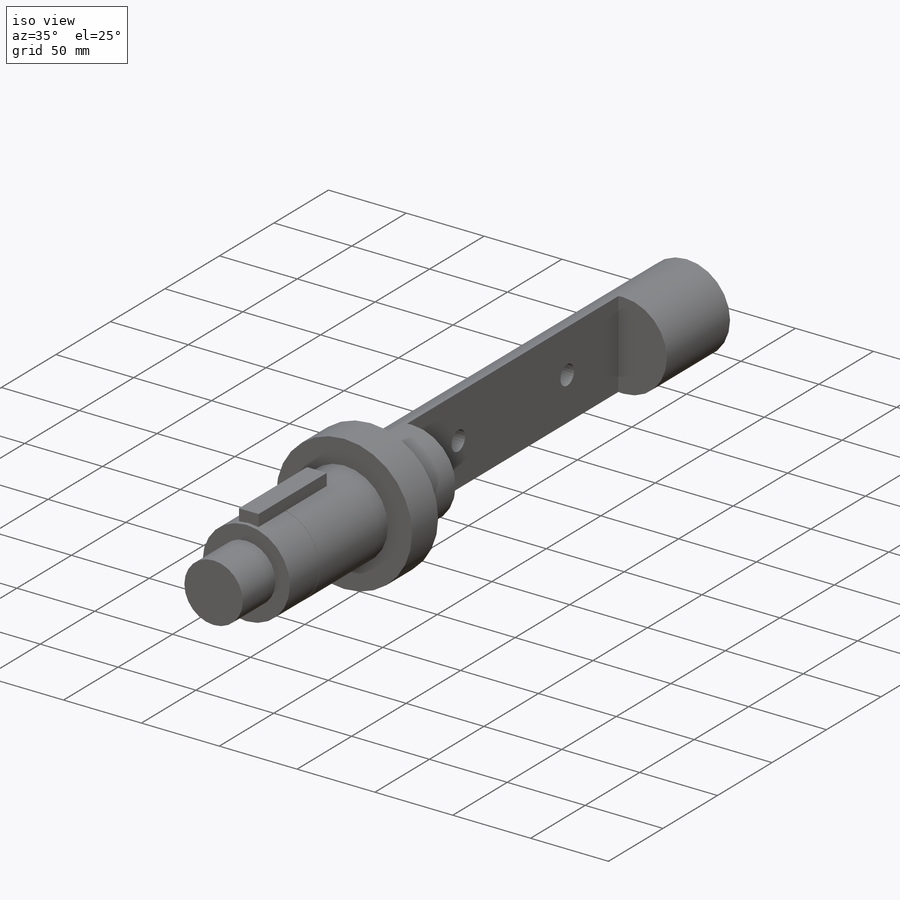
[diagram: iso view]
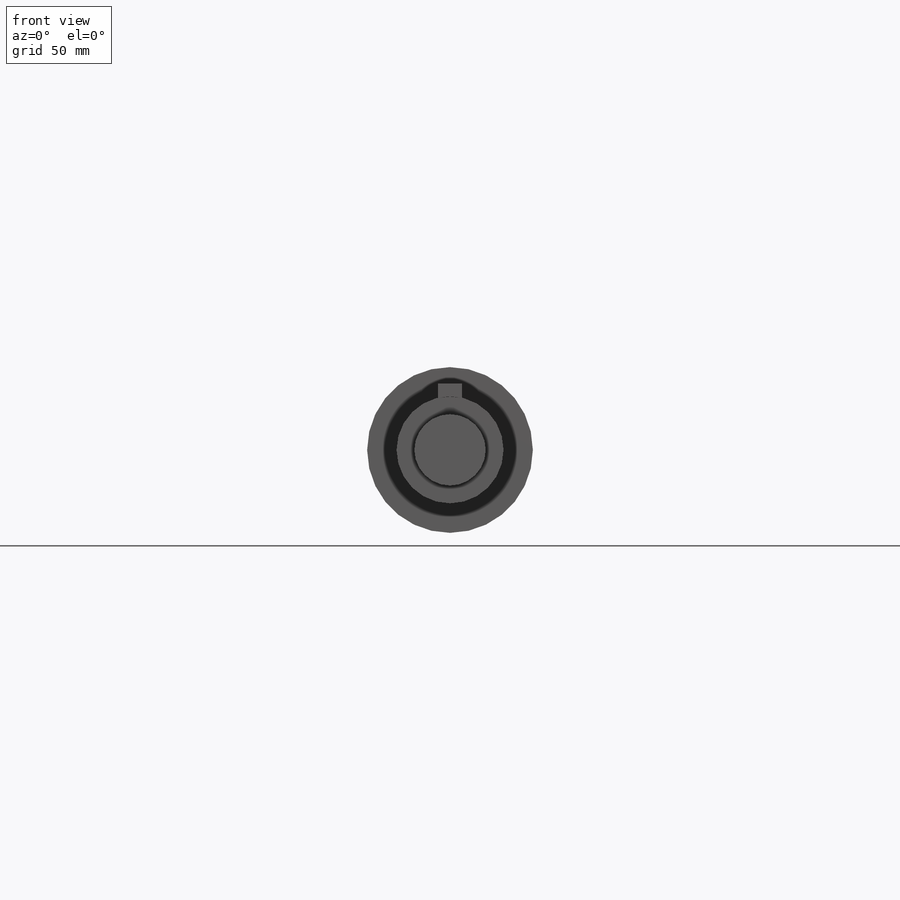
[diagram: front view]
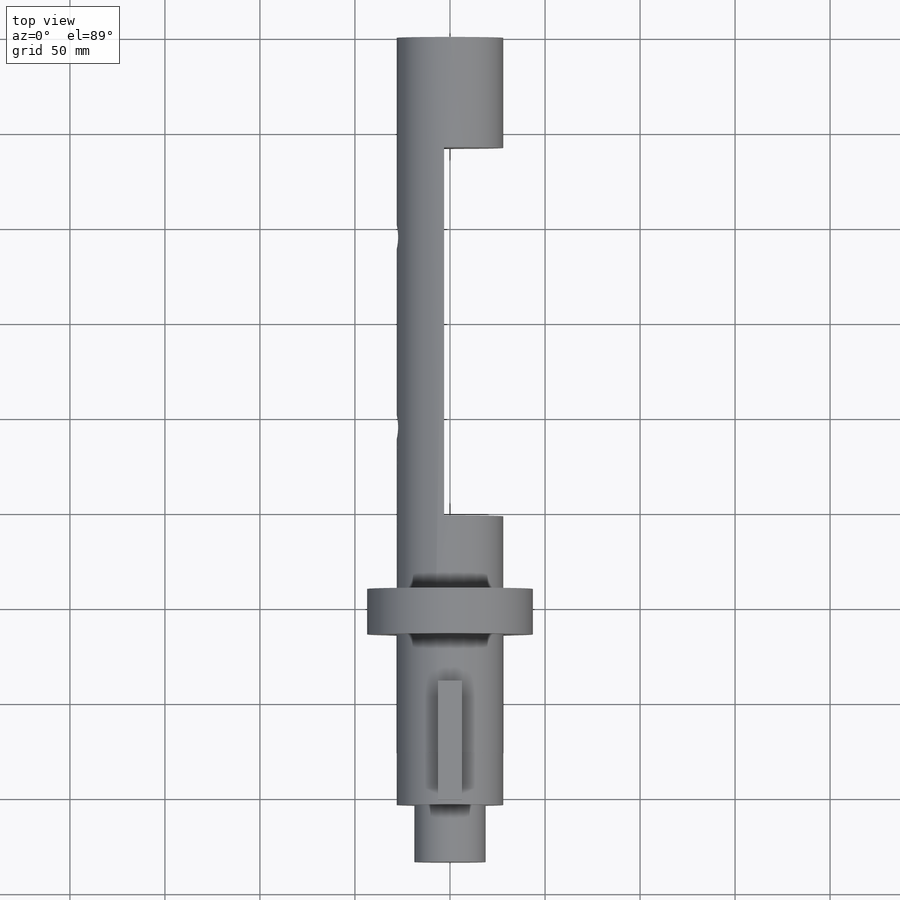
[diagram: top view]
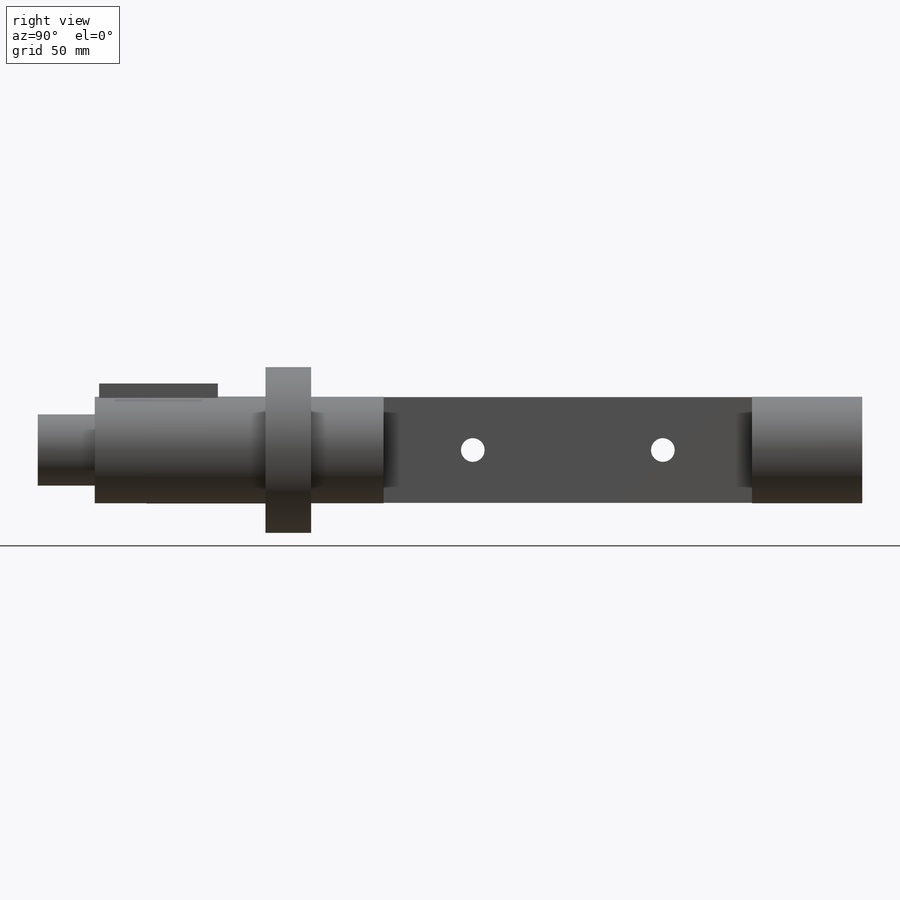
[diagram: right view]
SOLIDWORKS PART (.sldprt)
format: sldprt  version: not decoded by parser v0  size: 204,288 bytes
history: native  units: mm
features: sketch x5, extrude x2, cut_extrude x2, material x1, revolve x1 (+12 scaffold rows collapsed)
feature tree (23):
  scaffold x12  (default folders/planes/origin — collapsed)
  material  "Material <not specified>"
  sketch  "Sketch1"  dims[D1=433.8mm D2=28.0mm D3=43.6mm D4=28.0mm D5=18.75mm D6=290.0mm D7=24.0mm D8=89.8mm D9=30.0mm]
  revolve  "Revolve1"  Angle=360deg
  sketch  "Sketch2"  dims[D1=56.3mm]
  extrude  "Boss-Extrude1"  Depth=62.5mm
  sketch  "Sketch3"  dims[D4=56.3mm D1=12.6mm D2=6.3mm D3=35.0mm]
  extrude  "Boss-Extrude2"  Depth=62.5mm
  sketch  "Sketch5"  dims[D1=193.8mm D2=58.0mm D3=31.1mm]
  cut_extrude  "Cut-Extrude1"  [1 undecoded]
  sketch  "Sketch6"  dims[D1=12.5mm D2=12.5mm D3=100.0mm D4=46.9mm]
  cut_extrude  "Cut-Extrude2"  [1 undecoded]
decode coverage: 8 of 10 modeling features carry decoded parameters
note: 2 parameter values undecoded
note: suppression state not decoded; provenance and decode notes live in map.json
